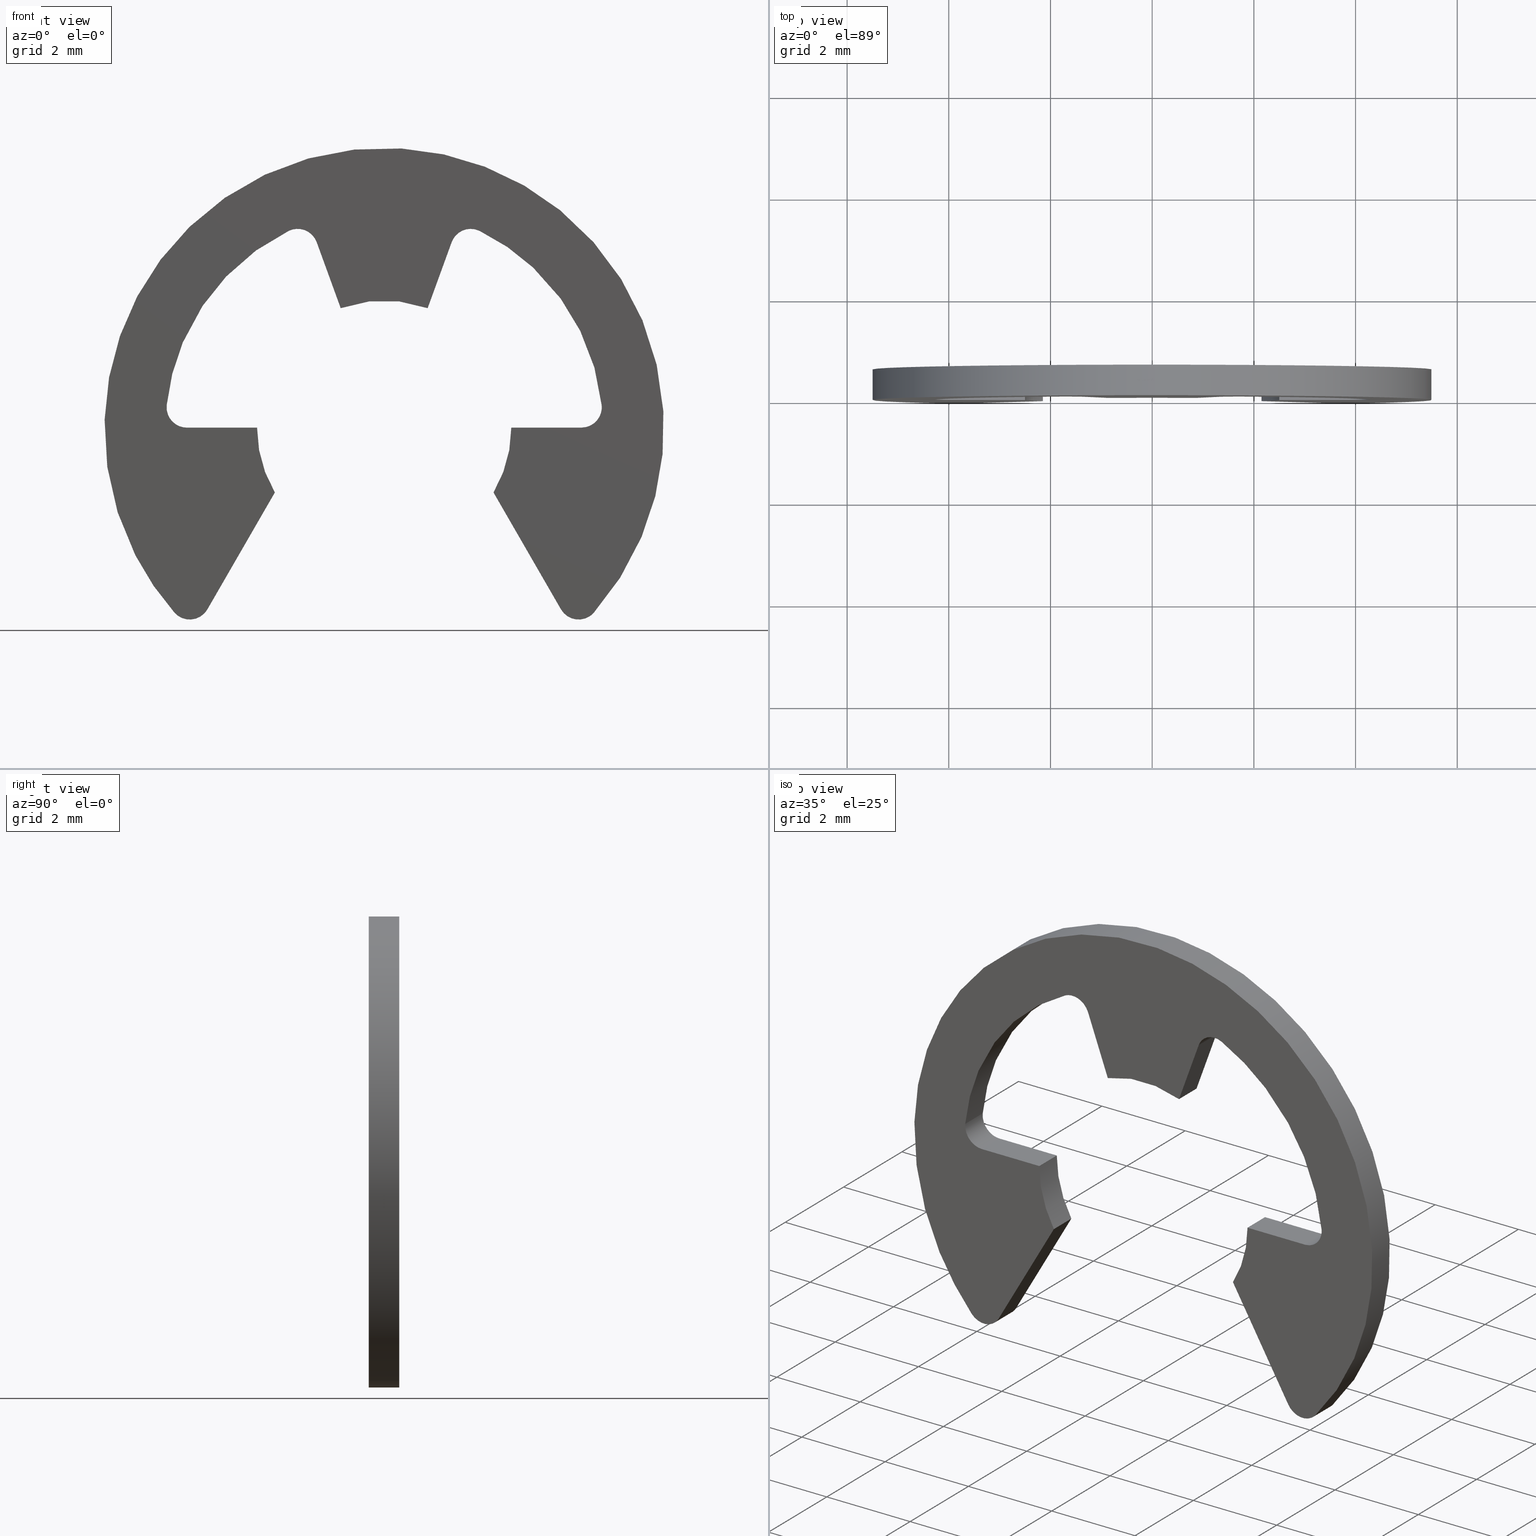
[diagram: canonical four-view strip — front | top / right | iso, engineering-drawing reading convention]
A machine part, canonical four-view strip (front | top / right | iso — engineering-drawing reading convention). The complete STEP part file that produces these views, byte-faithful:
ISO-10303-21;
HEADER;
/****************************************************************
 * Generated by software with PDE/Lib inside                    *
 * PDElib Version 4.4.1-0003, patched  Thursday August 19 11:58 *
 * International Technegroup Inc. (www.iti-oh.com)              *
 ****************************************************************/
FILE_DESCRIPTION((''),'2;1');
FILE_NAME('','2006-10-31T08:01:49',(''),(''),'','CADfix','');
FILE_SCHEMA(('AUTOMOTIVE_DESIGN'));
ENDSEC;
DATA;
#5=APPLICATION_CONTEXT('automotive design');
#6=APPLICATION_PROTOCOL_DEFINITION('Draft International Standard','automotive_design',1998,#5);
#7=PRODUCT_CONTEXT('None',#5,'mechanical');
#8=PRODUCT('retainer','retainer','None',(#7));
#9=PRODUCT_RELATED_PRODUCT_CATEGORY('part','description',(#8));
#10=PRODUCT_DEFINITION_FORMATION('','None',#8);
#11=PRODUCT_DEFINITION_CONTEXT('part definition',#5,'design');
#12=PRODUCT_DEFINITION('None','None',#10,#11);
#18=(NAMED_UNIT(*)PLANE_ANGLE_UNIT()SI_UNIT($,.RADIAN.));
#19=DIMENSIONAL_EXPONENTS(0.0,0.0,0.0,0.0,0.0,0.0,0.0);
#20=PLANE_ANGLE_MEASURE_WITH_UNIT(PLANE_ANGLE_MEASURE(0.017453292500000),#18);
#24=(CONVERSION_BASED_UNIT('DEGREE',#20)NAMED_UNIT(#19)PLANE_ANGLE_UNIT());
#28=(NAMED_UNIT(*)SI_UNIT($,.STERADIAN.)SOLID_ANGLE_UNIT());
#32=(LENGTH_UNIT()NAMED_UNIT(*)SI_UNIT(.MILLI.,.METRE.));
#34=UNCERTAINTY_MEASURE_WITH_UNIT(LENGTH_MEASURE(0.001000000000000),#32,'DISTANCE_ACCURACY_VALUE','');
#36=(GEOMETRIC_REPRESENTATION_CONTEXT(3)GLOBAL_UNCERTAINTY_ASSIGNED_CONTEXT((#34))GLOBAL_UNIT_ASSIGNED_CONTEXT((#24,#28,#32))REPRESENTATION_CONTEXT('None','None'));
#37=AXIS2_PLACEMENT_3D('',#38,#39,#40);
#38=CARTESIAN_POINT('',(0.0,0.0,0.0));
#39=DIRECTION('',(0.0,0.0,1.0));
#40=DIRECTION('',(1.0,0.0,0.0));
#41=ADVANCED_BREP_SHAPE_REPRESENTATION('',(#37,#941),#36);
#42=PRODUCT_DEFINITION_SHAPE('','',#12);
#43=SHAPE_DEFINITION_REPRESENTATION(#42,#41);
#44=CARTESIAN_POINT('',(-6.049443227775925,0.0,5.963273416196367));
#45=CARTESIAN_POINT('',(6.049443589360941,0.0,5.963273416196367));
#46=CARTESIAN_POINT('',(-6.049443227775925,0.0,-4.238017091847224));
#47=CARTESIAN_POINT('',(6.049443589360941,0.0,-4.238017091847224));
#48=B_SPLINE_SURFACE_WITH_KNOTS('',1,1,((#44,#46),(#45,#47)),.UNSPECIFIED.,.F.,.F.,.U.,(2,2),(2,2),(0.0,12.098886817136870),(0.0,10.201290508043590),.UNSPECIFIED.);
#49=CARTESIAN_POINT('',(4.123654509424055,0.0,-3.639433127137615));
#50=VERTEX_POINT('',#49);
#51=CARTESIAN_POINT('',(-4.123653205531125,0.0,-3.639434604511100));
#52=VERTEX_POINT('',#51);
#53=CARTESIAN_POINT('',(4.123654509424050,0.0,-3.639433127137617));
#54=CARTESIAN_POINT('',(7.614998239861816,0.0,0.316428902752809));
#55=CARTESIAN_POINT('',(3.807498437289647,0.0,3.968999326031297));
#56=CARTESIAN_POINT('',(-0.000001365282522,0.0,7.621569749309786));
#57=CARTESIAN_POINT('',(-3.807499859255109,0.0,3.968997961925947));
#58=CARTESIAN_POINT('',(-7.614998353227692,0.0,0.316426174542111));
#59=CARTESIAN_POINT('',(-4.123653205531126,0.0,-3.639434604511100));
#67=(BOUNDED_CURVE()B_SPLINE_CURVE(2,(#53,#54,#55,#56,#57,#58,#59),.UNSPECIFIED.,.F.,.U.)B_SPLINE_CURVE_WITH_KNOTS((3,2,2,3),(0.0,0.333333333333333,0.666666666666667,1.0),.UNSPECIFIED.)CURVE()GEOMETRIC_REPRESENTATION_ITEM()RATIONAL_B_SPLINE_CURVE((1.0,0.721636117087034,1.0,0.721636117087034,1.0,0.721636117087034,1.0))REPRESENTATION_ITEM(''));
#68=EDGE_CURVE('',#50,#52,#67,.T.);
#69=ORIENTED_EDGE('',*,*,#68,.T.);
#70=CARTESIAN_POINT('',(-3.477341278499450,0.0,-3.574748946463711));
#71=VERTEX_POINT('',#70);
#72=CARTESIAN_POINT('',(-4.123653205531123,0.0,-3.639434604511099));
#73=CARTESIAN_POINT('',(-3.987959944759057,0.0,-3.793181548901342));
#74=CARTESIAN_POINT('',(-3.783916458010689,0.0,-3.772760005280417));
#75=CARTESIAN_POINT('',(-3.579872971262322,0.0,-3.752338461659492));
#76=CARTESIAN_POINT('',(-3.477341278499449,0.0,-3.574748946463711));
#84=(BOUNDED_CURVE()B_SPLINE_CURVE(2,(#72,#73,#74,#75,#76),.UNSPECIFIED.,.F.,.U.)B_SPLINE_CURVE_WITH_KNOTS((3,2,3),(0.0,0.500000000000000,1.0),.UNSPECIFIED.)CURVE()GEOMETRIC_REPRESENTATION_ITEM()RATIONAL_B_SPLINE_CURVE((1.0,0.889876466052607,1.0,0.889876466052607,1.0))REPRESENTATION_ITEM(''));
#85=EDGE_CURVE('',#52,#71,#84,.T.);
#86=ORIENTED_EDGE('',*,*,#85,.T.);
#87=CARTESIAN_POINT('',(-2.150000000000000,0.0,-1.275733999999964));
#88=VERTEX_POINT('',#87);
#89=CARTESIAN_POINT('',(-3.477341278499450,0.0,-3.574748946463711));
#90=CARTESIAN_POINT('',(-2.150000000000000,0.0,-1.275733999999964));
#91=QUASI_UNIFORM_CURVE('',1,(#89,#90),.UNSPECIFIED.,.F.,.U.);
#92=EDGE_CURVE('',#71,#88,#91,.T.);
#93=ORIENTED_EDGE('',*,*,#92,.T.);
#94=CARTESIAN_POINT('',(-2.499999999999815,0.0,0.000000959931088));
#95=VERTEX_POINT('',#94);
#96=CARTESIAN_POINT('',(-2.499999999999816,0.0,0.000000959931088));
#97=CARTESIAN_POINT('',(-2.500000263358481,0.0,-0.685878132241590));
#98=CARTESIAN_POINT('',(-2.150000000000000,0.0,-1.275733999999964));
#106=(BOUNDED_CURVE()B_SPLINE_CURVE(2,(#96,#97,#98),.UNSPECIFIED.,.F.,.U.)CURVE()GEOMETRIC_REPRESENTATION_ITEM()QUASI_UNIFORM_CURVE()RATIONAL_B_SPLINE_CURVE((1.0,0.964365074552909,1.0))REPRESENTATION_ITEM(''));
#107=EDGE_CURVE('',#95,#88,#106,.T.);
#108=ORIENTED_EDGE('',*,*,#107,.F.);
#109=CARTESIAN_POINT('',(-3.879433000000055,0.0,0.0));
#110=VERTEX_POINT('',#109);
#111=CARTESIAN_POINT('',(-2.499999999999815,0.0,0.000000959931088));
#112=CARTESIAN_POINT('',(-3.879433000000055,0.0,0.0));
#113=QUASI_UNIFORM_CURVE('',1,(#111,#112),.UNSPECIFIED.,.F.,.U.);
#114=EDGE_CURVE('',#95,#110,#113,.T.);
#115=ORIENTED_EDGE('',*,*,#114,.T.);
#116=CARTESIAN_POINT('',(-4.277323619757000,0.0,0.441027049779827));
#117=VERTEX_POINT('',#116);
#118=CARTESIAN_POINT('',(-4.277323619757000,0.0,0.441027049779827));
#119=CARTESIAN_POINT('',(-4.295564864633802,0.0,0.264109855887720));
#120=CARTESIAN_POINT('',(-4.176426282678241,0.0,0.132055128518400));
#121=CARTESIAN_POINT('',(-4.057287700722681,0.0,0.000000401149081));
#122=CARTESIAN_POINT('',(-3.879433000000055,0.0,0.0));
#130=(BOUNDED_CURVE()B_SPLINE_CURVE(2,(#118,#119,#120,#121,#122),.UNSPECIFIED.,.F.,.U.)B_SPLINE_CURVE_WITH_KNOTS((3,2,3),(0.0,0.500000000000000,1.0),.UNSPECIFIED.)CURVE()GEOMETRIC_REPRESENTATION_ITEM()RATIONAL_B_SPLINE_CURVE((1.0,0.913746321115442,1.0,0.913746321115442,1.0))REPRESENTATION_ITEM(''));
#131=EDGE_CURVE('',#117,#110,#130,.T.);
#132=ORIENTED_EDGE('',*,*,#131,.F.);
#133=CARTESIAN_POINT('',(-1.877360747905205,0.0,3.868528999791110));
#134=VERTEX_POINT('',#133);
#135=CARTESIAN_POINT('',(-1.877360747905204,0.0,3.868528999791111));
#136=CARTESIAN_POINT('',(-4.031718396501105,0.0,2.823039490305286));
#137=CARTESIAN_POINT('',(-4.277323619757000,0.0,0.441027049779827));
#145=(BOUNDED_CURVE()B_SPLINE_CURVE(2,(#135,#136,#137),.UNSPECIFIED.,.F.,.U.)CURVE()GEOMETRIC_REPRESENTATION_ITEM()QUASI_UNIFORM_CURVE()RATIONAL_B_SPLINE_CURVE((1.0,0.873660681245324,1.0))REPRESENTATION_ITEM(''));
#146=EDGE_CURVE('',#134,#117,#145,.T.);
#147=ORIENTED_EDGE('',*,*,#146,.F.);
#148=CARTESIAN_POINT('',(-1.326844242992114,0.0,3.645475857685575));
#149=VERTEX_POINT('',#148);
#150=CARTESIAN_POINT('',(-1.326844242992111,0.0,3.645475857685576));
#151=CARTESIAN_POINT('',(-1.387674671427417,0.0,3.812604978960845));
#152=CARTESIAN_POINT('',(-1.552513541364013,0.0,3.879392935658835));
#153=CARTESIAN_POINT('',(-1.717352411300609,0.0,3.946180892356825));
#154=CARTESIAN_POINT('',(-1.877360747905205,0.0,3.868528999791110));
#162=(BOUNDED_CURVE()B_SPLINE_CURVE(2,(#150,#151,#152,#153,#154),.UNSPECIFIED.,.F.,.U.)B_SPLINE_CURVE_WITH_KNOTS((3,2,3),(0.0,0.500000000000000,1.0),.UNSPECIFIED.)CURVE()GEOMETRIC_REPRESENTATION_ITEM()RATIONAL_B_SPLINE_CURVE((1.0,0.913745869009801,1.0,0.913745869009801,1.0))REPRESENTATION_ITEM(''));
#163=EDGE_CURVE('',#149,#134,#162,.T.);
#164=ORIENTED_EDGE('',*,*,#163,.F.);
#165=CARTESIAN_POINT('',(-0.855049000000000,0.0,2.349236000000000));
#166=VERTEX_POINT('',#165);
#167=CARTESIAN_POINT('',(-1.326844242992114,0.0,3.645475857685575));
#168=CARTESIAN_POINT('',(-0.855049000000000,0.0,2.349236000000000));
#169=QUASI_UNIFORM_CURVE('',1,(#167,#168),.UNSPECIFIED.,.F.,.U.);
#170=EDGE_CURVE('',#149,#166,#169,.T.);
#171=ORIENTED_EDGE('',*,*,#170,.T.);
#172=CARTESIAN_POINT('',(0.855049251264791,0.0,2.349231954897500));
#173=VERTEX_POINT('',#172);
#174=CARTESIAN_POINT('',(0.855049251264791,0.0,2.349231954897500));
#175=CARTESIAN_POINT('',(0.000000226440876,0.0,2.660445406799210));
#176=CARTESIAN_POINT('',(-0.855049000000000,0.0,2.349236000000000));
#184=(BOUNDED_CURVE()B_SPLINE_CURVE(2,(#174,#175,#176),.UNSPECIFIED.,.F.,.U.)CURVE()GEOMETRIC_REPRESENTATION_ITEM()QUASI_UNIFORM_CURVE()RATIONAL_B_SPLINE_CURVE((1.0,0.939692892746932,1.0))REPRESENTATION_ITEM(''));
#185=EDGE_CURVE('',#173,#166,#184,.T.);
#186=ORIENTED_EDGE('',*,*,#185,.F.);
#187=CARTESIAN_POINT('',(1.326843000000060,0.0,3.645477000000000));
#188=VERTEX_POINT('',#187);
#189=CARTESIAN_POINT('',(0.855049251264791,0.0,2.349231954897500));
#190=CARTESIAN_POINT('',(1.326843000000060,0.0,3.645477000000000));
#191=QUASI_UNIFORM_CURVE('',1,(#189,#190),.UNSPECIFIED.,.F.,.U.);
#192=EDGE_CURVE('',#173,#188,#191,.T.);
#193=ORIENTED_EDGE('',*,*,#192,.T.);
#194=CARTESIAN_POINT('',(1.877359611078365,0.0,3.868529967698270));
#195=VERTEX_POINT('',#194);
#196=CARTESIAN_POINT('',(1.877359611078365,0.0,3.868529967698270));
#197=CARTESIAN_POINT('',(1.717351100605900,0.0,3.946180778456449));
#198=CARTESIAN_POINT('',(1.552512439643795,0.0,3.879393052565692));
#199=CARTESIAN_POINT('',(1.387673778681691,0.0,3.812605326674935));
#200=CARTESIAN_POINT('',(1.326843000000060,0.0,3.645477000000000));
#208=(BOUNDED_CURVE()B_SPLINE_CURVE(2,(#196,#197,#198,#199,#200),.UNSPECIFIED.,.F.,.U.)B_SPLINE_CURVE_WITH_KNOTS((3,2,3),(0.0,0.500000000000000,1.0),.UNSPECIFIED.)CURVE()GEOMETRIC_REPRESENTATION_ITEM()RATIONAL_B_SPLINE_CURVE((1.0,0.913746400642459,1.0,0.913746400642459,1.0))REPRESENTATION_ITEM(''));
#209=EDGE_CURVE('',#195,#188,#208,.T.);
#210=ORIENTED_EDGE('',*,*,#209,.F.);
#211=CARTESIAN_POINT('',(4.277323608182579,0.0,0.441024660176670));
#212=VERTEX_POINT('',#211);
#213=CARTESIAN_POINT('',(4.277323608182581,0.0,0.441024660176667));
#214=CARTESIAN_POINT('',(4.031719699543820,0.0,2.823039752624478));
#215=CARTESIAN_POINT('',(1.877359611078365,0.0,3.868529967698270));
#223=(BOUNDED_CURVE()B_SPLINE_CURVE(2,(#213,#214,#215),.UNSPECIFIED.,.F.,.U.)CURVE()GEOMETRIC_REPRESENTATION_ITEM()QUASI_UNIFORM_CURVE()RATIONAL_B_SPLINE_CURVE((1.0,0.873660465067616,1.0))REPRESENTATION_ITEM(''));
#224=EDGE_CURVE('',#212,#195,#223,.T.);
#225=ORIENTED_EDGE('',*,*,#224,.F.);
#226=CARTESIAN_POINT('',(3.879433125663770,0.0,0.000002000000027));
#227=VERTEX_POINT('',#226);
#228=CARTESIAN_POINT('',(3.879433125663770,0.0,0.000002000000028));
#229=CARTESIAN_POINT('',(4.057287077380157,0.0,0.000002055874494));
#230=CARTESIAN_POINT('',(4.176425529028260,0.0,0.132055293169272));
#231=CARTESIAN_POINT('',(4.295563980676364,0.0,0.264108530464050));
#232=CARTESIAN_POINT('',(4.277323608182579,0.0,0.441024660176670));
#240=(BOUNDED_CURVE()B_SPLINE_CURVE(2,(#228,#229,#230,#231,#232),.UNSPECIFIED.,.F.,.U.)B_SPLINE_CURVE_WITH_KNOTS((3,2,3),(0.0,0.500000000000000,1.0),.UNSPECIFIED.)CURVE()GEOMETRIC_REPRESENTATION_ITEM()RATIONAL_B_SPLINE_CURVE((1.0,0.913746956310715,1.0,0.913746956310715,1.0))REPRESENTATION_ITEM(''));
#241=EDGE_CURVE('',#227,#212,#240,.T.);
#242=ORIENTED_EDGE('',*,*,#241,.F.);
#243=CARTESIAN_POINT('',(2.500000000000000,0.0,0.0));
#244=VERTEX_POINT('',#243);
#245=CARTESIAN_POINT('',(3.879433125663770,0.0,0.000002000000027));
#246=CARTESIAN_POINT('',(2.500000000000000,0.0,0.0));
#247=QUASI_UNIFORM_CURVE('',1,(#245,#246),.UNSPECIFIED.,.F.,.U.);
#248=EDGE_CURVE('',#227,#244,#247,.T.);
#249=ORIENTED_EDGE('',*,*,#248,.T.);
#250=CARTESIAN_POINT('',(2.150001694623630,0.0,-1.275732226258912));
#251=VERTEX_POINT('',#250);
#252=CARTESIAN_POINT('',(2.150001694623630,0.0,-1.275732226258912));
#253=CARTESIAN_POINT('',(2.500000000000000,0.0,-0.685877291041595));
#254=CARTESIAN_POINT('',(2.500000000000000,0.0,0.0));
#262=(BOUNDED_CURVE()B_SPLINE_CURVE(2,(#252,#253,#254),.UNSPECIFIED.,.F.,.U.)CURVE()GEOMETRIC_REPRESENTATION_ITEM()QUASI_UNIFORM_CURVE()RATIONAL_B_SPLINE_CURVE((1.0,0.964365251823564,1.0))REPRESENTATION_ITEM(''));
#263=EDGE_CURVE('',#251,#244,#262,.T.);
#264=ORIENTED_EDGE('',*,*,#263,.F.);
#265=CARTESIAN_POINT('',(3.477342186207930,0.0,-3.574747054572700));
#266=VERTEX_POINT('',#265);
#267=CARTESIAN_POINT('',(2.150001694623630,0.0,-1.275732226258912));
#268=CARTESIAN_POINT('',(3.477342186207930,0.0,-3.574747054572700));
#269=QUASI_UNIFORM_CURVE('',1,(#267,#268),.UNSPECIFIED.,.F.,.U.);
#270=EDGE_CURVE('',#251,#266,#269,.T.);
#271=ORIENTED_EDGE('',*,*,#270,.T.);
#272=CARTESIAN_POINT('',(3.477342186207930,0.0,-3.574747054572700));
#273=CARTESIAN_POINT('',(3.579873729143400,0.0,-3.752336928228149));
#274=CARTESIAN_POINT('',(3.783917438515017,0.0,-3.772758612476947));
#275=CARTESIAN_POINT('',(3.987961147886634,0.0,-3.793180296725745));
#276=CARTESIAN_POINT('',(4.123654509424055,0.0,-3.639433127137615));
#284=(BOUNDED_CURVE()B_SPLINE_CURVE(2,(#272,#273,#274,#275,#276),.UNSPECIFIED.,.F.,.U.)B_SPLINE_CURVE_WITH_KNOTS((3,2,3),(0.0,0.500000000000000,1.0),.UNSPECIFIED.)CURVE()GEOMETRIC_REPRESENTATION_ITEM()RATIONAL_B_SPLINE_CURVE((1.0,0.889876253343318,1.0,0.889876253343318,1.0))REPRESENTATION_ITEM(''));
#285=EDGE_CURVE('',#266,#50,#284,.T.);
#286=ORIENTED_EDGE('',*,*,#285,.T.);
#287=EDGE_LOOP('',(#69,#86,#93,#108,#115,#132,#147,#164,#171,#186,#193,#210,#225,#242,#249,#264,#271,#286));
#288=FACE_OUTER_BOUND('',#287,.T.);
#289=ADVANCED_FACE('',(#288),#48,.F.);
#290=CARTESIAN_POINT('',(-6.049443227775925,0.600000000000000,5.963273416196367));
#291=CARTESIAN_POINT('',(6.049443589360941,0.600000000000000,5.963273416196367));
#292=CARTESIAN_POINT('',(-6.049443227775925,0.600000000000000,-4.238017091847224));
#293=CARTESIAN_POINT('',(6.049443589360941,0.600000000000000,-4.238017091847224));
#294=B_SPLINE_SURFACE_WITH_KNOTS('',1,1,((#290,#292),(#291,#293)),.UNSPECIFIED.,.F.,.F.,.U.,(2,2),(2,2),(0.0,12.098886817136870),(0.0,10.201290508043590),.UNSPECIFIED.);
#295=CARTESIAN_POINT('',(4.123654509424055,0.600000000000045,-3.639433127137615));
#296=VERTEX_POINT('',#295);
#297=CARTESIAN_POINT('',(-4.123653205531125,0.600000000000045,-3.639434604511100));
#298=VERTEX_POINT('',#297);
#299=CARTESIAN_POINT('',(4.123654509424050,0.600000000000045,-3.639433127137617));
#300=CARTESIAN_POINT('',(7.614998239861816,0.600000000000045,0.316428902752809));
#301=CARTESIAN_POINT('',(3.807498437289647,0.600000000000045,3.968999326031297));
#302=CARTESIAN_POINT('',(-0.000001365282522,0.600000000000045,7.621569749309786));
#303=CARTESIAN_POINT('',(-3.807499859255109,0.600000000000045,3.968997961925947));
#304=CARTESIAN_POINT('',(-7.614998353227692,0.600000000000045,0.316426174542111));
#305=CARTESIAN_POINT('',(-4.123653205531126,0.600000000000045,-3.639434604511100));
#313=(BOUNDED_CURVE()B_SPLINE_CURVE(2,(#299,#300,#301,#302,#303,#304,#305),.UNSPECIFIED.,.F.,.U.)B_SPLINE_CURVE_WITH_KNOTS((3,2,2,3),(0.0,0.333333333333333,0.666666666666667,1.0),.UNSPECIFIED.)CURVE()GEOMETRIC_REPRESENTATION_ITEM()RATIONAL_B_SPLINE_CURVE((1.0,0.721636117087034,1.0,0.721636117087034,1.0,0.721636117087034,1.0))REPRESENTATION_ITEM(''));
#314=EDGE_CURVE('',#296,#298,#313,.T.);
#315=ORIENTED_EDGE('',*,*,#314,.F.);
#316=CARTESIAN_POINT('',(3.477342186207930,0.600000000000045,-3.574747054572700));
#317=VERTEX_POINT('',#316);
#318=CARTESIAN_POINT('',(3.477342186207930,0.600000000000045,-3.574747054572700));
#319=CARTESIAN_POINT('',(3.579873729143400,0.600000000000045,-3.752336928228149));
#320=CARTESIAN_POINT('',(3.783917438515017,0.600000000000045,-3.772758612476947));
#321=CARTESIAN_POINT('',(3.987961147886634,0.600000000000045,-3.793180296725745));
#322=CARTESIAN_POINT('',(4.123654509424055,0.600000000000045,-3.639433127137615));
#330=(BOUNDED_CURVE()B_SPLINE_CURVE(2,(#318,#319,#320,#321,#322),.UNSPECIFIED.,.F.,.U.)B_SPLINE_CURVE_WITH_KNOTS((3,2,3),(0.0,0.500000000000000,1.0),.UNSPECIFIED.)CURVE()GEOMETRIC_REPRESENTATION_ITEM()RATIONAL_B_SPLINE_CURVE((1.0,0.889876253343318,1.0,0.889876253343318,1.0))REPRESENTATION_ITEM(''));
#331=EDGE_CURVE('',#317,#296,#330,.T.);
#332=ORIENTED_EDGE('',*,*,#331,.F.);
#333=CARTESIAN_POINT('',(2.150001694623630,0.600000000000045,-1.275732226258912));
#334=VERTEX_POINT('',#333);
#335=CARTESIAN_POINT('',(2.150001694623630,0.600000000000045,-1.275732226258912));
#336=CARTESIAN_POINT('',(3.477342186207930,0.600000000000045,-3.574747054572700));
#337=QUASI_UNIFORM_CURVE('',1,(#335,#336),.UNSPECIFIED.,.F.,.U.);
#338=EDGE_CURVE('',#334,#317,#337,.T.);
#339=ORIENTED_EDGE('',*,*,#338,.F.);
#340=CARTESIAN_POINT('',(2.500000000000000,0.600000000000045,0.0));
#341=VERTEX_POINT('',#340);
#342=CARTESIAN_POINT('',(2.150001694623630,0.600000000000045,-1.275732226258912));
#343=CARTESIAN_POINT('',(2.500000000000000,0.600000000000045,-0.685877291041595));
#344=CARTESIAN_POINT('',(2.500000000000000,0.600000000000045,0.0));
#352=(BOUNDED_CURVE()B_SPLINE_CURVE(2,(#342,#343,#344),.UNSPECIFIED.,.F.,.U.)CURVE()GEOMETRIC_REPRESENTATION_ITEM()QUASI_UNIFORM_CURVE()RATIONAL_B_SPLINE_CURVE((1.0,0.964365251823564,1.0))REPRESENTATION_ITEM(''));
#353=EDGE_CURVE('',#334,#341,#352,.T.);
#354=ORIENTED_EDGE('',*,*,#353,.T.);
#355=CARTESIAN_POINT('',(3.879433125663770,0.600000000000045,0.000002000000027));
#356=VERTEX_POINT('',#355);
#357=CARTESIAN_POINT('',(3.879433125663770,0.600000000000045,0.000002000000027));
#358=CARTESIAN_POINT('',(2.500000000000000,0.600000000000045,0.0));
#359=QUASI_UNIFORM_CURVE('',1,(#357,#358),.UNSPECIFIED.,.F.,.U.);
#360=EDGE_CURVE('',#356,#341,#359,.T.);
#361=ORIENTED_EDGE('',*,*,#360,.F.);
#362=CARTESIAN_POINT('',(4.277323608182579,0.600000000000045,0.441024660176670));
#363=VERTEX_POINT('',#362);
#364=CARTESIAN_POINT('',(3.879433125663770,0.600000000000045,0.000002000000028));
#365=CARTESIAN_POINT('',(4.057287077380157,0.600000000000045,0.000002055874494));
#366=CARTESIAN_POINT('',(4.176425529028260,0.600000000000045,0.132055293169272));
#367=CARTESIAN_POINT('',(4.295563980676364,0.600000000000045,0.264108530464050));
#368=CARTESIAN_POINT('',(4.277323608182579,0.600000000000045,0.441024660176670));
#376=(BOUNDED_CURVE()B_SPLINE_CURVE(2,(#364,#365,#366,#367,#368),.UNSPECIFIED.,.F.,.U.)B_SPLINE_CURVE_WITH_KNOTS((3,2,3),(0.0,0.500000000000000,1.0),.UNSPECIFIED.)CURVE()GEOMETRIC_REPRESENTATION_ITEM()RATIONAL_B_SPLINE_CURVE((1.0,0.913746956310715,1.0,0.913746956310715,1.0))REPRESENTATION_ITEM(''));
#377=EDGE_CURVE('',#356,#363,#376,.T.);
#378=ORIENTED_EDGE('',*,*,#377,.T.);
#379=CARTESIAN_POINT('',(1.877359611078365,0.600000000000045,3.868529967698270));
#380=VERTEX_POINT('',#379);
#381=CARTESIAN_POINT('',(4.277323608182581,0.600000000000045,0.441024660176667));
#382=CARTESIAN_POINT('',(4.031719699543820,0.600000000000045,2.823039752624478));
#383=CARTESIAN_POINT('',(1.877359611078365,0.600000000000045,3.868529967698270));
#391=(BOUNDED_CURVE()B_SPLINE_CURVE(2,(#381,#382,#383),.UNSPECIFIED.,.F.,.U.)CURVE()GEOMETRIC_REPRESENTATION_ITEM()QUASI_UNIFORM_CURVE()RATIONAL_B_SPLINE_CURVE((1.0,0.873660465067616,1.0))REPRESENTATION_ITEM(''));
#392=EDGE_CURVE('',#363,#380,#391,.T.);
#393=ORIENTED_EDGE('',*,*,#392,.T.);
#394=CARTESIAN_POINT('',(1.326843000000060,0.600000000000045,3.645477000000000));
#395=VERTEX_POINT('',#394);
#396=CARTESIAN_POINT('',(1.877359611078365,0.600000000000045,3.868529967698270));
#397=CARTESIAN_POINT('',(1.717351100605900,0.600000000000045,3.946180778456449));
#398=CARTESIAN_POINT('',(1.552512439643795,0.600000000000045,3.879393052565692));
#399=CARTESIAN_POINT('',(1.387673778681691,0.600000000000045,3.812605326674935));
#400=CARTESIAN_POINT('',(1.326843000000060,0.600000000000045,3.645477000000000));
#408=(BOUNDED_CURVE()B_SPLINE_CURVE(2,(#396,#397,#398,#399,#400),.UNSPECIFIED.,.F.,.U.)B_SPLINE_CURVE_WITH_KNOTS((3,2,3),(0.0,0.500000000000000,1.0),.UNSPECIFIED.)CURVE()GEOMETRIC_REPRESENTATION_ITEM()RATIONAL_B_SPLINE_CURVE((1.0,0.913746400642459,1.0,0.913746400642459,1.0))REPRESENTATION_ITEM(''));
#409=EDGE_CURVE('',#380,#395,#408,.T.);
#410=ORIENTED_EDGE('',*,*,#409,.T.);
#411=CARTESIAN_POINT('',(0.855049251264791,0.600000000000045,2.349231954897500));
#412=VERTEX_POINT('',#411);
#413=CARTESIAN_POINT('',(0.855049251264791,0.600000000000045,2.349231954897500));
#414=CARTESIAN_POINT('',(1.326843000000060,0.600000000000045,3.645477000000000));
#415=QUASI_UNIFORM_CURVE('',1,(#413,#414),.UNSPECIFIED.,.F.,.U.);
#416=EDGE_CURVE('',#412,#395,#415,.T.);
#417=ORIENTED_EDGE('',*,*,#416,.F.);
#418=CARTESIAN_POINT('',(-0.855049000000000,0.600000000000045,2.349236000000000));
#419=VERTEX_POINT('',#418);
#420=CARTESIAN_POINT('',(0.855049251264791,0.600000000000045,2.349231954897500));
#421=CARTESIAN_POINT('',(0.000000226440876,0.600000000000045,2.660445406799210));
#422=CARTESIAN_POINT('',(-0.855049000000000,0.600000000000045,2.349236000000000));
#430=(BOUNDED_CURVE()B_SPLINE_CURVE(2,(#420,#421,#422),.UNSPECIFIED.,.F.,.U.)CURVE()GEOMETRIC_REPRESENTATION_ITEM()QUASI_UNIFORM_CURVE()RATIONAL_B_SPLINE_CURVE((1.0,0.939692892746932,1.0))REPRESENTATION_ITEM(''));
#431=EDGE_CURVE('',#412,#419,#430,.T.);
#432=ORIENTED_EDGE('',*,*,#431,.T.);
#433=CARTESIAN_POINT('',(-1.326844242992114,0.600000000000045,3.645475857685575));
#434=VERTEX_POINT('',#433);
#435=CARTESIAN_POINT('',(-1.326844242992114,0.600000000000045,3.645475857685575));
#436=CARTESIAN_POINT('',(-0.855049000000000,0.600000000000045,2.349236000000000));
#437=QUASI_UNIFORM_CURVE('',1,(#435,#436),.UNSPECIFIED.,.F.,.U.);
#438=EDGE_CURVE('',#434,#419,#437,.T.);
#439=ORIENTED_EDGE('',*,*,#438,.F.);
#440=CARTESIAN_POINT('',(-1.877360747905205,0.600000000000045,3.868528999791110));
#441=VERTEX_POINT('',#440);
#442=CARTESIAN_POINT('',(-1.326844242992111,0.600000000000045,3.645475857685576));
#443=CARTESIAN_POINT('',(-1.387674671427417,0.600000000000045,3.812604978960845));
#444=CARTESIAN_POINT('',(-1.552513541364013,0.600000000000045,3.879392935658835));
#445=CARTESIAN_POINT('',(-1.717352411300609,0.600000000000045,3.946180892356825));
#446=CARTESIAN_POINT('',(-1.877360747905205,0.600000000000045,3.868528999791110));
#454=(BOUNDED_CURVE()B_SPLINE_CURVE(2,(#442,#443,#444,#445,#446),.UNSPECIFIED.,.F.,.U.)B_SPLINE_CURVE_WITH_KNOTS((3,2,3),(0.0,0.500000000000000,1.0),.UNSPECIFIED.)CURVE()GEOMETRIC_REPRESENTATION_ITEM()RATIONAL_B_SPLINE_CURVE((1.0,0.913745869009801,1.0,0.913745869009801,1.0))REPRESENTATION_ITEM(''));
#455=EDGE_CURVE('',#434,#441,#454,.T.);
#456=ORIENTED_EDGE('',*,*,#455,.T.);
#457=CARTESIAN_POINT('',(-4.277323619757000,0.600000000000045,0.441027049779827));
#458=VERTEX_POINT('',#457);
#459=CARTESIAN_POINT('',(-1.877360747905204,0.600000000000045,3.868528999791111));
#460=CARTESIAN_POINT('',(-4.031718396501105,0.600000000000045,2.823039490305286));
#461=CARTESIAN_POINT('',(-4.277323619757000,0.600000000000045,0.441027049779827));
#469=(BOUNDED_CURVE()B_SPLINE_CURVE(2,(#459,#460,#461),.UNSPECIFIED.,.F.,.U.)CURVE()GEOMETRIC_REPRESENTATION_ITEM()QUASI_UNIFORM_CURVE()RATIONAL_B_SPLINE_CURVE((1.0,0.873660681245324,1.0))REPRESENTATION_ITEM(''));
#470=EDGE_CURVE('',#441,#458,#469,.T.);
#471=ORIENTED_EDGE('',*,*,#470,.T.);
#472=CARTESIAN_POINT('',(-3.879433000000055,0.600000000000045,0.0));
#473=VERTEX_POINT('',#472);
#474=CARTESIAN_POINT('',(-4.277323619757000,0.600000000000045,0.441027049779827));
#475=CARTESIAN_POINT('',(-4.295564864633802,0.600000000000045,0.264109855887720));
#476=CARTESIAN_POINT('',(-4.176426282678241,0.600000000000045,0.132055128518400));
#477=CARTESIAN_POINT('',(-4.057287700722681,0.600000000000045,0.000000401149081));
#478=CARTESIAN_POINT('',(-3.879433000000055,0.600000000000045,0.0));
#486=(BOUNDED_CURVE()B_SPLINE_CURVE(2,(#474,#475,#476,#477,#478),.UNSPECIFIED.,.F.,.U.)B_SPLINE_CURVE_WITH_KNOTS((3,2,3),(0.0,0.500000000000000,1.0),.UNSPECIFIED.)CURVE()GEOMETRIC_REPRESENTATION_ITEM()RATIONAL_B_SPLINE_CURVE((1.0,0.913746321115442,1.0,0.913746321115442,1.0))REPRESENTATION_ITEM(''));
#487=EDGE_CURVE('',#458,#473,#486,.T.);
#488=ORIENTED_EDGE('',*,*,#487,.T.);
#489=CARTESIAN_POINT('',(-2.499999999999815,0.600000000000045,0.000000959931088));
#490=VERTEX_POINT('',#489);
#491=CARTESIAN_POINT('',(-2.499999999999815,0.600000000000045,0.000000959931088));
#492=CARTESIAN_POINT('',(-3.879433000000055,0.600000000000045,0.0));
#493=QUASI_UNIFORM_CURVE('',1,(#491,#492),.UNSPECIFIED.,.F.,.U.);
#494=EDGE_CURVE('',#490,#473,#493,.T.);
#495=ORIENTED_EDGE('',*,*,#494,.F.);
#496=CARTESIAN_POINT('',(-2.150000000000000,0.600000000000045,-1.275733999999964));
#497=VERTEX_POINT('',#496);
#498=CARTESIAN_POINT('',(-2.499999999999816,0.600000000000045,0.000000959931088));
#499=CARTESIAN_POINT('',(-2.500000263358481,0.600000000000045,-0.685878132241590));
#500=CARTESIAN_POINT('',(-2.150000000000000,0.600000000000045,-1.275733999999964));
#508=(BOUNDED_CURVE()B_SPLINE_CURVE(2,(#498,#499,#500),.UNSPECIFIED.,.F.,.U.)CURVE()GEOMETRIC_REPRESENTATION_ITEM()QUASI_UNIFORM_CURVE()RATIONAL_B_SPLINE_CURVE((1.0,0.964365074552909,1.0))REPRESENTATION_ITEM(''));
#509=EDGE_CURVE('',#490,#497,#508,.T.);
#510=ORIENTED_EDGE('',*,*,#509,.T.);
#511=CARTESIAN_POINT('',(-3.477341278499450,0.600000000000045,-3.574748946463711));
#512=VERTEX_POINT('',#511);
#513=CARTESIAN_POINT('',(-3.477341278499450,0.600000000000045,-3.574748946463711));
#514=CARTESIAN_POINT('',(-2.150000000000000,0.600000000000045,-1.275733999999964));
#515=QUASI_UNIFORM_CURVE('',1,(#513,#514),.UNSPECIFIED.,.F.,.U.);
#516=EDGE_CURVE('',#512,#497,#515,.T.);
#517=ORIENTED_EDGE('',*,*,#516,.F.);
#518=CARTESIAN_POINT('',(-4.123653205531123,0.600000000000045,-3.639434604511099));
#519=CARTESIAN_POINT('',(-3.987959944759057,0.600000000000045,-3.793181548901342));
#520=CARTESIAN_POINT('',(-3.783916458010689,0.600000000000045,-3.772760005280417));
#521=CARTESIAN_POINT('',(-3.579872971262322,0.600000000000045,-3.752338461659492));
#522=CARTESIAN_POINT('',(-3.477341278499449,0.600000000000045,-3.574748946463711));
#530=(BOUNDED_CURVE()B_SPLINE_CURVE(2,(#518,#519,#520,#521,#522),.UNSPECIFIED.,.F.,.U.)B_SPLINE_CURVE_WITH_KNOTS((3,2,3),(0.0,0.500000000000000,1.0),.UNSPECIFIED.)CURVE()GEOMETRIC_REPRESENTATION_ITEM()RATIONAL_B_SPLINE_CURVE((1.0,0.889876466052607,1.0,0.889876466052607,1.0))REPRESENTATION_ITEM(''));
#531=EDGE_CURVE('',#298,#512,#530,.T.);
#532=ORIENTED_EDGE('',*,*,#531,.F.);
#533=EDGE_LOOP('',(#315,#332,#339,#354,#361,#378,#393,#410,#417,#432,#439,#456,#471,#488,#495,#510,#517,#532));
#534=FACE_OUTER_BOUND('',#533,.T.);
#535=ADVANCED_FACE('',(#534),#294,.T.);
#536=CARTESIAN_POINT('',(4.130480413382545,0.615000000000046,-3.631491902863540));
#537=CARTESIAN_POINT('',(4.130480413382545,-0.015375000000001,-3.631491902863540));
#538=CARTESIAN_POINT('',(3.742581301529843,0.615000000000046,-4.094907435821106));
#539=CARTESIAN_POINT('',(3.742581301529843,-0.015375000000001,-4.094907435821106));
#540=CARTESIAN_POINT('',(3.467569311991347,0.615000000000046,-3.556773546558835));
#541=CARTESIAN_POINT('',(3.467569311991347,-0.015375000000001,-3.556773546558835));
#549=(BOUNDED_SURFACE()B_SPLINE_SURFACE(1,2,((#536,#538,#540),(#537,#539,#541)),.UNSPECIFIED.,.F.,.F.,.U.)GEOMETRIC_REPRESENTATION_ITEM()QUASI_UNIFORM_SURFACE()RATIONAL_B_SPLINE_SURFACE(((1.0,0.551936985312058,1.0),(1.0,0.551936985312058,1.0)))REPRESENTATION_ITEM('')SURFACE());
#550=ORIENTED_EDGE('',*,*,#285,.F.);
#551=CARTESIAN_POINT('',(3.477342186207930,0.600000000000045,-3.574747054572700));
#552=CARTESIAN_POINT('',(3.477342186207930,0.0,-3.574747054572700));
#553=QUASI_UNIFORM_CURVE('',1,(#551,#552),.UNSPECIFIED.,.F.,.U.);
#554=EDGE_CURVE('',#317,#266,#553,.T.);
#555=ORIENTED_EDGE('',*,*,#554,.F.);
#556=ORIENTED_EDGE('',*,*,#331,.T.);
#557=CARTESIAN_POINT('',(4.123654509424055,0.600000000000045,-3.639433127137615));
#558=CARTESIAN_POINT('',(4.123654509424055,0.0,-3.639433127137615));
#559=QUASI_UNIFORM_CURVE('',1,(#557,#558),.UNSPECIFIED.,.F.,.U.);
#560=EDGE_CURVE('',#296,#50,#559,.T.);
#561=ORIENTED_EDGE('',*,*,#560,.T.);
#562=EDGE_LOOP('',(#550,#555,#556,#561));
#563=FACE_OUTER_BOUND('',#562,.T.);
#564=ADVANCED_FACE('',(#563),#549,.T.);
#565=CARTESIAN_POINT('',(3.543642690339935,-0.029969998837086,-3.689582916932701));
#566=CARTESIAN_POINT('',(2.083704174909472,-0.029969998837086,-1.160894777876824));
#567=CARTESIAN_POINT('',(3.543642690339935,0.629970014930385,-3.689582916932701));
#568=CARTESIAN_POINT('',(2.083704174909472,0.629970014930385,-1.160894777876824));
#569=B_SPLINE_SURFACE_WITH_KNOTS('',1,1,((#565,#567),(#566,#568)),.UNSPECIFIED.,.F.,.F.,.U.,(2,2),(2,2),(0.0,2.919877424386026),(0.041708334948495,0.958291687403247),.UNSPECIFIED.);
#570=ORIENTED_EDGE('',*,*,#270,.F.);
#571=CARTESIAN_POINT('',(2.150001694623630,0.600000000000045,-1.275732226258912));
#572=CARTESIAN_POINT('',(2.150001694623630,0.0,-1.275732226258912));
#573=QUASI_UNIFORM_CURVE('',1,(#571,#572),.UNSPECIFIED.,.F.,.U.);
#574=EDGE_CURVE('',#334,#251,#573,.T.);
#575=ORIENTED_EDGE('',*,*,#574,.F.);
#576=ORIENTED_EDGE('',*,*,#338,.T.);
#577=ORIENTED_EDGE('',*,*,#554,.T.);
#578=EDGE_LOOP('',(#570,#575,#576,#577));
#579=FACE_OUTER_BOUND('',#578,.T.);
#580=ADVANCED_FACE('',(#579),#569,.T.);
#581=CARTESIAN_POINT('',(2.499904807660427,0.615000000000046,0.021816338745933));
#582=CARTESIAN_POINT('',(2.499904807660427,-0.015375000000001,0.021816338745933));
#583=CARTESIAN_POINT('',(2.506304871660987,0.615000000000046,-0.711558355819342));
#584=CARTESIAN_POINT('',(2.506304871660987,-0.015375000000001,-0.711558355819342));
#585=CARTESIAN_POINT('',(2.115499950392400,0.615000000000046,-1.332163638555619));
#586=CARTESIAN_POINT('',(2.115499950392400,-0.015375000000001,-1.332163638555619));
#594=(BOUNDED_SURFACE()B_SPLINE_SURFACE(1,2,((#581,#583,#585),(#582,#584,#586)),.UNSPECIFIED.,.F.,.F.,.U.)B_SPLINE_SURFACE_WITH_KNOTS((2,2),(3,3),(0.0,1.0),(0.0,0.961240106376261),.UNSPECIFIED.)GEOMETRIC_REPRESENTATION_ITEM()RATIONAL_B_SPLINE_SURFACE(((1.0,0.957998378973772,0.996744043273998),(1.0,0.957998378973772,0.996744043273998)))REPRESENTATION_ITEM('')SURFACE());
#595=ORIENTED_EDGE('',*,*,#263,.T.);
#596=CARTESIAN_POINT('',(2.500000000000000,0.600000000000045,0.0));
#597=CARTESIAN_POINT('',(2.500000000000000,0.0,0.0));
#598=QUASI_UNIFORM_CURVE('',1,(#596,#597),.UNSPECIFIED.,.F.,.U.);
#599=EDGE_CURVE('',#341,#244,#598,.T.);
#600=ORIENTED_EDGE('',*,*,#599,.F.);
#601=ORIENTED_EDGE('',*,*,#353,.F.);
#602=ORIENTED_EDGE('',*,*,#574,.T.);
#603=EDGE_LOOP('',(#595,#600,#601,#602));
#604=FACE_OUTER_BOUND('',#603,.T.);
#605=ADVANCED_FACE('',(#604),#594,.F.);
#606=CARTESIAN_POINT('',(2.431097318046704,-0.029969998837086,0.0));
#607=CARTESIAN_POINT('',(3.948335844616347,-0.029969998837086,0.0));
#608=CARTESIAN_POINT('',(2.431097318046704,0.629970014930385,0.0));
#609=CARTESIAN_POINT('',(3.948335844616347,0.629970014930385,0.0));
#610=B_SPLINE_SURFACE_WITH_KNOTS('',1,1,((#606,#608),(#607,#609)),.UNSPECIFIED.,.F.,.F.,.U.,(2,2),(2,2),(0.041708334948495,0.958291687403247),(0.041708334948495,0.958291687403247),.UNSPECIFIED.);
#611=ORIENTED_EDGE('',*,*,#248,.F.);
#612=CARTESIAN_POINT('',(3.879433125663770,0.600000000000045,0.000002000000027));
#613=CARTESIAN_POINT('',(3.879433125663770,0.0,0.000002000000027));
#614=QUASI_UNIFORM_CURVE('',1,(#612,#613),.UNSPECIFIED.,.F.,.U.);
#615=EDGE_CURVE('',#356,#227,#614,.T.);
#616=ORIENTED_EDGE('',*,*,#615,.F.);
#617=ORIENTED_EDGE('',*,*,#360,.T.);
#618=ORIENTED_EDGE('',*,*,#599,.T.);
#619=EDGE_LOOP('',(#611,#616,#617,#618));
#620=FACE_OUTER_BOUND('',#619,.T.);
#621=ADVANCED_FACE('',(#620),#610,.T.);
#622=CARTESIAN_POINT('',(4.276113667414833,0.615000000000046,0.451426197605550));
#623=CARTESIAN_POINT('',(4.276113667414833,-0.015375000000001,0.451426197605550));
#624=CARTESIAN_POINT('',(4.337398639657511,0.615000000000046,-0.021319412898669));
#625=CARTESIAN_POINT('',(4.337398639657511,-0.015375000000001,-0.021319412898669));
#626=CARTESIAN_POINT('',(3.861193073482159,0.615000000000046,0.000418085057701));
#627=CARTESIAN_POINT('',(3.861193073482159,-0.015375000000001,0.000418085057701));
#635=(BOUNDED_SURFACE()B_SPLINE_SURFACE(1,2,((#622,#624,#626),(#623,#625,#627)),.UNSPECIFIED.,.F.,.F.,.U.)GEOMETRIC_REPRESENTATION_ITEM()QUASI_UNIFORM_SURFACE()RATIONAL_B_SPLINE_SURFACE(((1.0,0.642787609686539,1.0),(1.0,0.642787609686539,1.0)))REPRESENTATION_ITEM('')SURFACE());
#636=ORIENTED_EDGE('',*,*,#241,.T.);
#637=CARTESIAN_POINT('',(4.277323608182579,0.600000000000045,0.441024660176670));
#638=CARTESIAN_POINT('',(4.277323608182579,0.0,0.441024660176670));
#639=QUASI_UNIFORM_CURVE('',1,(#637,#638),.UNSPECIFIED.,.F.,.U.);
#640=EDGE_CURVE('',#363,#212,#639,.T.);
#641=ORIENTED_EDGE('',*,*,#640,.F.);
#642=ORIENTED_EDGE('',*,*,#377,.F.);
#643=ORIENTED_EDGE('',*,*,#615,.T.);
#644=EDGE_LOOP('',(#636,#641,#642,#643));
#645=FACE_OUTER_BOUND('',#644,.T.);
#646=ADVANCED_FACE('',(#645),#635,.F.);
#647=CARTESIAN_POINT('',(1.775449823226349,0.615000000000046,3.916347523548633));
#648=CARTESIAN_POINT('',(1.775449823226349,-0.015375000000001,3.916347523548633));
#649=CARTESIAN_POINT('',(4.152172624987191,0.615000000000046,2.838876218238942));
#650=CARTESIAN_POINT('',(4.152172624987191,-0.015375000000001,2.838876218238942));
#651=CARTESIAN_POINT('',(4.293673750629004,0.615000000000046,0.233164583844650));
#652=CARTESIAN_POINT('',(4.293673750629004,-0.015375000000001,0.233164583844650));
#660=(BOUNDED_SURFACE()B_SPLINE_SURFACE(1,2,((#647,#649,#651),(#648,#650,#652)),.UNSPECIFIED.,.F.,.F.,.U.)B_SPLINE_SURFACE_WITH_KNOTS((2,2),(3,3),(0.0,1.0),(0.0,4.810804323903155),.UNSPECIFIED.)GEOMETRIC_REPRESENTATION_ITEM()RATIONAL_B_SPLINE_SURFACE(((1.0,0.853857442009774,0.997585555526634),(1.0,0.853857442009774,0.997585555526634)))REPRESENTATION_ITEM('')SURFACE());
#661=ORIENTED_EDGE('',*,*,#224,.T.);
#662=CARTESIAN_POINT('',(1.877359611078365,0.600000000000045,3.868529967698270));
#663=CARTESIAN_POINT('',(1.877359611078365,0.0,3.868529967698270));
#664=QUASI_UNIFORM_CURVE('',1,(#662,#663),.UNSPECIFIED.,.F.,.U.);
#665=EDGE_CURVE('',#380,#195,#664,.T.);
#666=ORIENTED_EDGE('',*,*,#665,.F.);
#667=ORIENTED_EDGE('',*,*,#392,.F.);
#668=ORIENTED_EDGE('',*,*,#640,.T.);
#669=EDGE_LOOP('',(#661,#666,#667,#668));
#670=FACE_OUTER_BOUND('',#669,.T.);
#671=ADVANCED_FACE('',(#670),#660,.F.);
#672=CARTESIAN_POINT('',(1.323392013880640,0.615000000000046,3.635590285056991));
#673=CARTESIAN_POINT('',(1.323392013880640,-0.015375000000001,3.635590285056991));
#674=CARTESIAN_POINT('',(1.474653294831168,0.615000000000046,4.087656967039856));
#675=CARTESIAN_POINT('',(1.474653294831168,-0.015375000000001,4.087656967039856));
#676=CARTESIAN_POINT('',(1.893585822337775,0.615000000000046,3.860193129318958));
#677=CARTESIAN_POINT('',(1.893585822337775,-0.015375000000001,3.860193129318958));
#685=(BOUNDED_SURFACE()B_SPLINE_SURFACE(1,2,((#672,#674,#676),(#673,#675,#677)),.UNSPECIFIED.,.F.,.F.,.U.)GEOMETRIC_REPRESENTATION_ITEM()QUASI_UNIFORM_SURFACE()RATIONAL_B_SPLINE_SURFACE(((1.0,0.642787609686539,1.0),(1.0,0.642787609686539,1.0)))REPRESENTATION_ITEM('')SURFACE());
#686=ORIENTED_EDGE('',*,*,#209,.T.);
#687=CARTESIAN_POINT('',(1.326843000000060,0.600000000000045,3.645477000000000));
#688=CARTESIAN_POINT('',(1.326843000000060,0.0,3.645477000000000));
#689=QUASI_UNIFORM_CURVE('',1,(#687,#688),.UNSPECIFIED.,.F.,.U.);
#690=EDGE_CURVE('',#395,#188,#689,.T.);
#691=ORIENTED_EDGE('',*,*,#690,.F.);
#692=ORIENTED_EDGE('',*,*,#409,.F.);
#693=ORIENTED_EDGE('',*,*,#665,.T.);
#694=EDGE_LOOP('',(#686,#691,#692,#693));
#695=FACE_OUTER_BOUND('',#694,.T.);
#696=ADVANCED_FACE('',(#695),#685,.F.);
#697=CARTESIAN_POINT('',(1.350409195000488,-0.029969998837086,3.710224470662090));
#698=CARTESIAN_POINT('',(0.831481542755734,-0.029969998837086,2.284485061357750));
#699=CARTESIAN_POINT('',(1.350409195000488,0.629970014930385,3.710224470662090));
#700=CARTESIAN_POINT('',(0.831481542755734,0.629970014930385,2.284485061357750));
#701=B_SPLINE_SURFACE_WITH_KNOTS('',1,1,((#697,#699),(#698,#700)),.UNSPECIFIED.,.F.,.F.,.U.,(2,2),(2,2),(0.041708295834810,0.958291689264029),(0.041708334948495,0.958291687403247),.UNSPECIFIED.);
#702=ORIENTED_EDGE('',*,*,#192,.F.);
#703=CARTESIAN_POINT('',(0.855049251264791,0.600000000000045,2.349231954897500));
#704=CARTESIAN_POINT('',(0.855049251264791,0.0,2.349231954897500));
#705=QUASI_UNIFORM_CURVE('',1,(#703,#704),.UNSPECIFIED.,.F.,.U.);
#706=EDGE_CURVE('',#412,#173,#705,.T.);
#707=ORIENTED_EDGE('',*,*,#706,.F.);
#708=ORIENTED_EDGE('',*,*,#416,.T.);
#709=ORIENTED_EDGE('',*,*,#690,.T.);
#710=EDGE_LOOP('',(#702,#707,#708,#709));
#711=FACE_OUTER_BOUND('',#710,.T.);
#712=ADVANCED_FACE('',(#711),#701,.T.);
#713=CARTESIAN_POINT('',(-0.875515832609756,0.615000000000046,2.341681452898673));
#714=CARTESIAN_POINT('',(-0.875515832609756,-0.015375000000001,2.341681452898673));
#715=CARTESIAN_POINT('',(0.034121789907310,0.615000000000046,2.681779863579321));
#716=CARTESIAN_POINT('',(0.034121789907310,-0.015375000000001,2.681779863579321));
#717=CARTESIAN_POINT('',(0.934811814474343,0.615000000000046,2.318647638499472));
#718=CARTESIAN_POINT('',(0.934811814474343,-0.015375000000001,2.318647638499472));
#726=(BOUNDED_SURFACE()B_SPLINE_SURFACE(1,2,((#713,#715,#717),(#714,#716,#718)),.UNSPECIFIED.,.F.,.F.,.U.)B_SPLINE_SURFACE_WITH_KNOTS((2,2),(3,3),(0.0,1.0),(0.0,0.987101473657414),.UNSPECIFIED.)GEOMETRIC_REPRESENTATION_ITEM()RATIONAL_B_SPLINE_SURFACE(((1.0,0.931315078814390,0.998228131469498),(1.0,0.931315078814390,0.998228131469498)))REPRESENTATION_ITEM('')SURFACE());
#727=ORIENTED_EDGE('',*,*,#185,.T.);
#728=CARTESIAN_POINT('',(-0.855049000000000,0.600000000000045,2.349236000000000));
#729=CARTESIAN_POINT('',(-0.855049000000000,0.0,2.349236000000000));
#730=QUASI_UNIFORM_CURVE('',1,(#728,#729),.UNSPECIFIED.,.F.,.U.);
#731=EDGE_CURVE('',#419,#166,#730,.T.);
#732=ORIENTED_EDGE('',*,*,#731,.F.);
#733=ORIENTED_EDGE('',*,*,#431,.F.);
#734=ORIENTED_EDGE('',*,*,#706,.T.);
#735=EDGE_LOOP('',(#727,#732,#733,#734));
#736=FACE_OUTER_BOUND('',#735,.T.);
#737=ADVANCED_FACE('',(#736),#726,.F.);
#738=CARTESIAN_POINT('',(-0.831482817904962,-0.029969998837086,2.284488839267251));
#739=CARTESIAN_POINT('',(-1.350410743279285,-0.029969998837086,3.710222955103510));
#740=CARTESIAN_POINT('',(-0.831482817904962,0.629970014930385,2.284488839267251));
#741=CARTESIAN_POINT('',(-1.350410743279285,0.629970014930385,3.710222955103510));
#742=B_SPLINE_SURFACE_WITH_KNOTS('',1,1,((#738,#740),(#739,#741)),.UNSPECIFIED.,.F.,.F.,.U.,(2,2),(2,2),(0.041708342771232,0.958291687031090),(0.041708334948495,0.958291687403247),.UNSPECIFIED.);
#743=ORIENTED_EDGE('',*,*,#170,.F.);
#744=CARTESIAN_POINT('',(-1.326844242992114,0.600000000000045,3.645475857685575));
#745=CARTESIAN_POINT('',(-1.326844242992114,0.0,3.645475857685575));
#746=QUASI_UNIFORM_CURVE('',1,(#744,#745),.UNSPECIFIED.,.F.,.U.);
#747=EDGE_CURVE('',#434,#149,#746,.T.);
#748=ORIENTED_EDGE('',*,*,#747,.F.);
#749=ORIENTED_EDGE('',*,*,#438,.T.);
#750=ORIENTED_EDGE('',*,*,#731,.T.);
#751=EDGE_LOOP('',(#743,#748,#749,#750));
#752=FACE_OUTER_BOUND('',#751,.T.);
#753=ADVANCED_FACE('',(#752),#742,.T.);
#754=CARTESIAN_POINT('',(-1.886721164437879,0.615000000000046,3.863834480897159));
#755=CARTESIAN_POINT('',(-1.886721164437879,-0.015375000000001,3.863834480897159));
#756=CARTESIAN_POINT('',(-1.463449043106055,0.615000000000046,4.083117337903926));
#757=CARTESIAN_POINT('',(-1.463449043106055,-0.015375000000001,4.083117337903926));
#758=CARTESIAN_POINT('',(-1.320998017949610,0.615000000000046,3.628197602669599));
#759=CARTESIAN_POINT('',(-1.320998017949610,-0.015375000000001,3.628197602669599));
#767=(BOUNDED_SURFACE()B_SPLINE_SURFACE(1,2,((#754,#756,#758),(#755,#757,#759)),.UNSPECIFIED.,.F.,.F.,.U.)GEOMETRIC_REPRESENTATION_ITEM()QUASI_UNIFORM_SURFACE()RATIONAL_B_SPLINE_SURFACE(((1.0,0.642787609686539,1.0),(1.0,0.642787609686539,1.0)))REPRESENTATION_ITEM('')SURFACE());
#768=ORIENTED_EDGE('',*,*,#163,.T.);
#769=CARTESIAN_POINT('',(-1.877360747905205,0.600000000000045,3.868528999791110));
#770=CARTESIAN_POINT('',(-1.877360747905205,0.0,3.868528999791110));
#771=QUASI_UNIFORM_CURVE('',1,(#769,#770),.UNSPECIFIED.,.F.,.U.);
#772=EDGE_CURVE('',#441,#134,#771,.T.);
#773=ORIENTED_EDGE('',*,*,#772,.F.);
#774=ORIENTED_EDGE('',*,*,#455,.F.);
#775=ORIENTED_EDGE('',*,*,#747,.T.);
#776=EDGE_LOOP('',(#768,#773,#774,#775));
#777=FACE_OUTER_BOUND('',#776,.T.);
#778=ADVANCED_FACE('',(#777),#767,.F.);
#779=CARTESIAN_POINT('',(-4.287402374216274,0.615000000000046,0.328908621906827));
#780=CARTESIAN_POINT('',(-4.287402374216274,-0.015375000000001,0.328908621906827));
#781=CARTESIAN_POINT('',(-4.087797036425993,0.615000000000046,2.930811831944035));
#782=CARTESIAN_POINT('',(-4.087797036425993,-0.015375000000001,2.930811831944035));
#783=CARTESIAN_POINT('',(-1.687628153387087,0.615000000000046,3.954985615131271));
#784=CARTESIAN_POINT('',(-1.687628153387087,-0.015375000000001,3.954985615131271));
#792=(BOUNDED_SURFACE()B_SPLINE_SURFACE(1,2,((#779,#781,#783),(#780,#782,#784)),.UNSPECIFIED.,.F.,.F.,.U.)B_SPLINE_SURFACE_WITH_KNOTS((2,2),(3,3),(0.0,1.0),(0.0,4.810800372258917),.UNSPECIFIED.)GEOMETRIC_REPRESENTATION_ITEM()RATIONAL_B_SPLINE_SURFACE(((1.0,0.853857561896528,0.997585319714657),(1.0,0.853857561896528,0.997585319714657)))REPRESENTATION_ITEM('')SURFACE());
#793=ORIENTED_EDGE('',*,*,#146,.T.);
#794=CARTESIAN_POINT('',(-4.277323619757000,0.600000000000045,0.441027049779827));
#795=CARTESIAN_POINT('',(-4.277323619757000,0.0,0.441027049779827));
#796=QUASI_UNIFORM_CURVE('',1,(#794,#795),.UNSPECIFIED.,.F.,.U.);
#797=EDGE_CURVE('',#458,#117,#796,.T.);
#798=ORIENTED_EDGE('',*,*,#797,.F.);
#799=ORIENTED_EDGE('',*,*,#470,.F.);
#800=ORIENTED_EDGE('',*,*,#772,.T.);
#801=EDGE_LOOP('',(#793,#798,#799,#800));
#802=FACE_OUTER_BOUND('',#801,.T.);
#803=ADVANCED_FACE('',(#802),#792,.F.);
#804=CARTESIAN_POINT('',(-3.868962220676905,0.615000000000046,0.000139070009785));
#805=CARTESIAN_POINT('',(-3.868962220676905,-0.015375000000001,0.000139070009785));
#806=CARTESIAN_POINT('',(-4.345500304038001,0.615000000000046,-0.012339518865839));
#807=CARTESIAN_POINT('',(-4.345500304038001,-0.015375000000001,-0.012339518865839));
#808=CARTESIAN_POINT('',(-4.275039345344823,0.615000000000046,0.459125764451852));
#809=CARTESIAN_POINT('',(-4.275039345344823,-0.015375000000001,0.459125764451852));
#817=(BOUNDED_SURFACE()B_SPLINE_SURFACE(1,2,((#804,#806,#808),(#805,#807,#809)),.UNSPECIFIED.,.F.,.F.,.U.)GEOMETRIC_REPRESENTATION_ITEM()QUASI_UNIFORM_SURFACE()RATIONAL_B_SPLINE_SURFACE(((1.0,0.642787609686539,1.0),(1.0,0.642787609686539,1.0)))REPRESENTATION_ITEM('')SURFACE());
#818=ORIENTED_EDGE('',*,*,#131,.T.);
#819=CARTESIAN_POINT('',(-3.879433000000055,0.600000000000045,0.0));
#820=CARTESIAN_POINT('',(-3.879433000000055,0.0,0.0));
#821=QUASI_UNIFORM_CURVE('',1,(#819,#820),.UNSPECIFIED.,.F.,.U.);
#822=EDGE_CURVE('',#473,#110,#821,.T.);
#823=ORIENTED_EDGE('',*,*,#822,.F.);
#824=ORIENTED_EDGE('',*,*,#487,.F.);
#825=ORIENTED_EDGE('',*,*,#797,.T.);
#826=EDGE_LOOP('',(#818,#823,#824,#825));
#827=FACE_OUTER_BOUND('',#826,.T.);
#828=ADVANCED_FACE('',(#827),#817,.F.);
#829=CARTESIAN_POINT('',(-3.948335597981678,-0.029969998837086,0.0));
#830=CARTESIAN_POINT('',(-2.431097291020364,-0.029969998837086,0.0));
#831=CARTESIAN_POINT('',(-3.948335597981678,0.629970014930385,0.0));
#832=CARTESIAN_POINT('',(-2.431097291020364,0.629970014930385,0.0));
#833=B_SPLINE_SURFACE_WITH_KNOTS('',1,1,((#829,#831),(#830,#832)),.UNSPECIFIED.,.F.,.F.,.U.,(2,2),(2,2),(0.041708381884918,0.958291685170308),(0.041708334948495,0.958291687403247),.UNSPECIFIED.);
#834=ORIENTED_EDGE('',*,*,#114,.F.);
#835=CARTESIAN_POINT('',(-2.499999999999815,0.600000000000045,0.000000959931088));
#836=CARTESIAN_POINT('',(-2.499999999999815,0.0,0.000000959931088));
#837=QUASI_UNIFORM_CURVE('',1,(#835,#836),.UNSPECIFIED.,.F.,.U.);
#838=EDGE_CURVE('',#490,#95,#837,.T.);
#839=ORIENTED_EDGE('',*,*,#838,.F.);
#840=ORIENTED_EDGE('',*,*,#494,.T.);
#841=ORIENTED_EDGE('',*,*,#822,.T.);
#842=EDGE_LOOP('',(#834,#839,#840,#841));
#843=FACE_OUTER_BOUND('',#842,.T.);
#844=ADVANCED_FACE('',(#843),#833,.T.);
#845=CARTESIAN_POINT('',(-2.138785869007326,0.615000000000046,-1.294447761222743));
#846=CARTESIAN_POINT('',(-2.138785869007326,-0.015375000000001,-1.294447761222743));
#847=CARTESIAN_POINT('',(-2.518527400335995,0.615000000000046,-0.667009678813173));
#848=CARTESIAN_POINT('',(-2.518527400335995,-0.015375000000001,-0.667009678813173));
#849=CARTESIAN_POINT('',(-2.499124996154714,0.615000000000046,0.066138140242185));
#850=CARTESIAN_POINT('',(-2.499124996154714,-0.015375000000001,0.066138140242185));
#858=(BOUNDED_SURFACE()B_SPLINE_SURFACE(1,2,((#845,#847,#849),(#846,#848,#850)),.UNSPECIFIED.,.F.,.F.,.U.)B_SPLINE_SURFACE_WITH_KNOTS((2,2),(3,3),(0.0,1.0),(0.0,0.961242481325008),.UNSPECIFIED.)GEOMETRIC_REPRESENTATION_ITEM()RATIONAL_B_SPLINE_SURFACE(((1.0,0.957998275199807,0.996744234733349),(1.0,0.957998275199807,0.996744234733349)))REPRESENTATION_ITEM('')SURFACE());
#859=ORIENTED_EDGE('',*,*,#107,.T.);
#860=CARTESIAN_POINT('',(-2.150000000000000,0.600000000000045,-1.275733999999964));
#861=CARTESIAN_POINT('',(-2.150000000000000,0.0,-1.275733999999964));
#862=QUASI_UNIFORM_CURVE('',1,(#860,#861),.UNSPECIFIED.,.F.,.U.);
#863=EDGE_CURVE('',#497,#88,#862,.T.);
#864=ORIENTED_EDGE('',*,*,#863,.F.);
#865=ORIENTED_EDGE('',*,*,#509,.F.);
#866=ORIENTED_EDGE('',*,*,#838,.T.);
#867=EDGE_LOOP('',(#859,#864,#865,#866));
#868=FACE_OUTER_BOUND('',#867,.T.);
#869=ADVANCED_FACE('',(#868),#858,.F.);
#870=CARTESIAN_POINT('',(-2.083699305711579,-0.029969998837086,-1.160898207880048));
#871=CARTESIAN_POINT('',(-3.543642008389921,-0.029969998837086,-3.689584800248023));
#872=CARTESIAN_POINT('',(-2.083699305711579,0.629970014930385,-1.160898207880048));
#873=CARTESIAN_POINT('',(-3.543642008389921,0.629970014930385,-3.689584800248023));
#874=B_SPLINE_SURFACE_WITH_KNOTS('',1,1,((#870,#872),(#871,#873)),.UNSPECIFIED.,.F.,.F.,.U.,(2,2),(2,2),(0.0,2.919878178541925),(0.041708334948495,0.958291687403247),.UNSPECIFIED.);
#875=ORIENTED_EDGE('',*,*,#92,.F.);
#876=CARTESIAN_POINT('',(-3.477341278499450,0.600000000000045,-3.574748946463711));
#877=CARTESIAN_POINT('',(-3.477341278499450,0.0,-3.574748946463711));
#878=QUASI_UNIFORM_CURVE('',1,(#876,#877),.UNSPECIFIED.,.F.,.U.);
#879=EDGE_CURVE('',#512,#71,#878,.T.);
#880=ORIENTED_EDGE('',*,*,#879,.F.);
#881=ORIENTED_EDGE('',*,*,#516,.T.);
#882=ORIENTED_EDGE('',*,*,#863,.T.);
#883=EDGE_LOOP('',(#875,#880,#881,#882));
#884=FACE_OUTER_BOUND('',#883,.T.);
#885=ADVANCED_FACE('',(#884),#874,.T.);
#886=CARTESIAN_POINT('',(-3.470799083749583,0.615000000000046,-3.562963317900477));
#887=CARTESIAN_POINT('',(-3.470799083749583,-0.015375000000001,-3.562963317900477));
#888=CARTESIAN_POINT('',(-3.766237245006974,0.615000000000046,-4.116987092331284));
#889=CARTESIAN_POINT('',(-3.766237245006974,-0.015375000000001,-4.116987092331284));
#890=CARTESIAN_POINT('',(-4.143495743814584,0.615000000000046,-3.615088621682952));
#891=CARTESIAN_POINT('',(-4.143495743814584,-0.015375000000001,-3.615088621682952));
#899=(BOUNDED_SURFACE()B_SPLINE_SURFACE(1,2,((#886,#888,#890),(#887,#889,#891)),.UNSPECIFIED.,.F.,.F.,.U.)GEOMETRIC_REPRESENTATION_ITEM()QUASI_UNIFORM_SURFACE()RATIONAL_B_SPLINE_SURFACE(((1.0,0.537299608346823,1.0),(1.0,0.537299608346823,1.0)))REPRESENTATION_ITEM('')SURFACE());
#900=ORIENTED_EDGE('',*,*,#85,.F.);
#901=CARTESIAN_POINT('',(-4.123653205531125,0.600000000000045,-3.639434604511100));
#902=CARTESIAN_POINT('',(-4.123653205531125,0.0,-3.639434604511100));
#903=QUASI_UNIFORM_CURVE('',1,(#901,#902),.UNSPECIFIED.,.F.,.U.);
#904=EDGE_CURVE('',#298,#52,#903,.T.);
#905=ORIENTED_EDGE('',*,*,#904,.F.);
#906=ORIENTED_EDGE('',*,*,#531,.T.);
#907=ORIENTED_EDGE('',*,*,#879,.T.);
#908=EDGE_LOOP('',(#900,#905,#906,#907));
#909=FACE_OUTER_BOUND('',#908,.T.);
#910=ADVANCED_FACE('',(#909),#899,.T.);
#911=CARTESIAN_POINT('',(-4.017912668553516,0.615000000000046,-3.755845815242839));
#912=CARTESIAN_POINT('',(-4.017912668553516,-0.015375000000001,-3.755845815242839));
#913=CARTESIAN_POINT('',(-7.751971173835771,0.615000000000046,0.238759318068133));
#914=CARTESIAN_POINT('',(-7.751971173835771,-0.015375000000001,0.238759318068133));
#915=CARTESIAN_POINT('',(-3.779157391043287,0.615000000000046,3.995994170881994));
#916=CARTESIAN_POINT('',(-3.779157391043287,-0.015375000000001,3.995994170881994));
#917=CARTESIAN_POINT('',(0.193656391749196,0.615000000000046,7.753229023695855));
#918=CARTESIAN_POINT('',(0.193656391749196,-0.015375000000001,7.753229023695855));
#919=CARTESIAN_POINT('',(3.973940423654858,0.615000000000046,3.802341056407464));
#920=CARTESIAN_POINT('',(3.973940423654858,-0.015375000000001,3.802341056407464));
#921=CARTESIAN_POINT('',(7.754224455560520,0.615000000000046,-0.148546910880927));
#922=CARTESIAN_POINT('',(7.754224455560520,-0.015375000000001,-0.148546910880927));
#923=CARTESIAN_POINT('',(3.825396026654436,0.615000000000046,-3.951752173309511));
#924=CARTESIAN_POINT('',(3.825396026654436,-0.015375000000001,-3.951752173309511));
#932=(BOUNDED_SURFACE()B_SPLINE_SURFACE(1,2,((#911,#913,#915,#917,#919,#921,#923),(#912,#914,#916,#918,#920,#922,#924)),.UNSPECIFIED.,.F.,.F.,.U.)B_SPLINE_SURFACE_WITH_KNOTS((2,2),(3,2,2,3),(0.0,1.0),(0.0,9.075233275757384,18.150466551514771,27.225699827272152),.UNSPECIFIED.)GEOMETRIC_REPRESENTATION_ITEM()RATIONAL_B_SPLINE_SURFACE(((1.0,0.709160676911444,1.0,0.709160676911444,1.0,0.709160676911444,1.0),(1.0,0.709160676911444,1.0,0.709160676911444,1.0,0.709160676911444,1.0)))REPRESENTATION_ITEM('')SURFACE());
#933=ORIENTED_EDGE('',*,*,#68,.F.);
#934=ORIENTED_EDGE('',*,*,#560,.F.);
#935=ORIENTED_EDGE('',*,*,#314,.T.);
#936=ORIENTED_EDGE('',*,*,#904,.T.);
#937=EDGE_LOOP('',(#933,#934,#935,#936));
#938=FACE_OUTER_BOUND('',#937,.T.);
#939=ADVANCED_FACE('',(#938),#932,.T.);
#940=CLOSED_SHELL('',(#289,#535,#564,#580,#605,#621,#646,#671,#696,#712,#737,#753,#778,#803,#828,#844,#869,#885,#910,#939));
#941=MANIFOLD_SOLID_BREP('retainer',#940);
#947=(NAMED_UNIT(*)PLANE_ANGLE_UNIT()SI_UNIT($,.RADIAN.));
#948=DIMENSIONAL_EXPONENTS(0.0,0.0,0.0,0.0,0.0,0.0,0.0);
#949=PLANE_ANGLE_MEASURE_WITH_UNIT(PLANE_ANGLE_MEASURE(0.017453292500000),#947);
#953=(CONVERSION_BASED_UNIT('DEGREE',#949)NAMED_UNIT(#948)PLANE_ANGLE_UNIT());
#957=(NAMED_UNIT(*)SI_UNIT($,.STERADIAN.)SOLID_ANGLE_UNIT());
#961=(LENGTH_UNIT()NAMED_UNIT(*)SI_UNIT(.MILLI.,.METRE.));
#963=UNCERTAINTY_MEASURE_WITH_UNIT(LENGTH_MEASURE(0.001000000000000),#961,'DISTANCE_ACCURACY_VALUE','');
#965=(GEOMETRIC_REPRESENTATION_CONTEXT(3)GLOBAL_UNCERTAINTY_ASSIGNED_CONTEXT((#963))GLOBAL_UNIT_ASSIGNED_CONTEXT((#953,#957,#961))REPRESENTATION_CONTEXT('','3D'));
ENDSEC;
END-ISO-10303-21;
